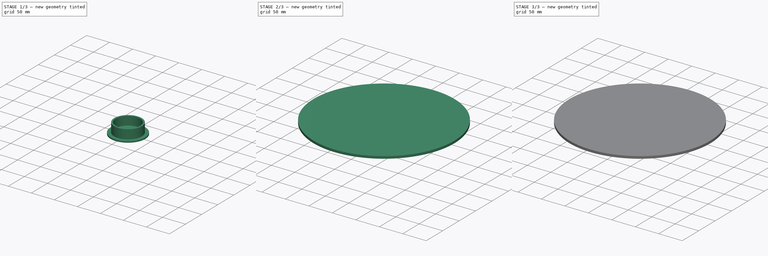
[diagram: build sequence overview — one tinted view per stage of 3, left to right]
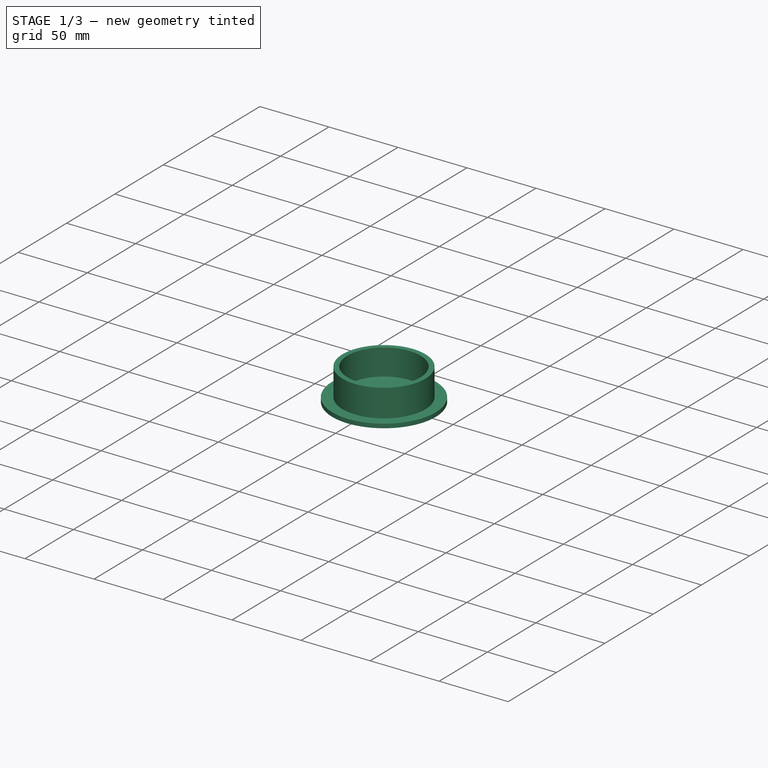
[diagram: stage 1 of 3 — iso view after this stage's code; geometry added in this stage tinted green]
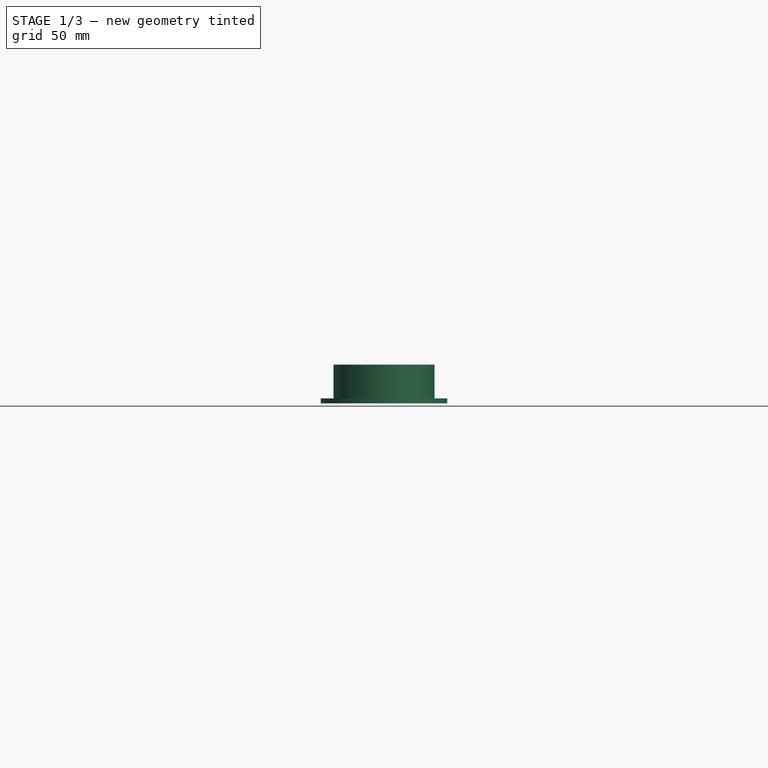
[diagram: stage 1 of 3 — front view after this stage's code; geometry added in this stage tinted green]
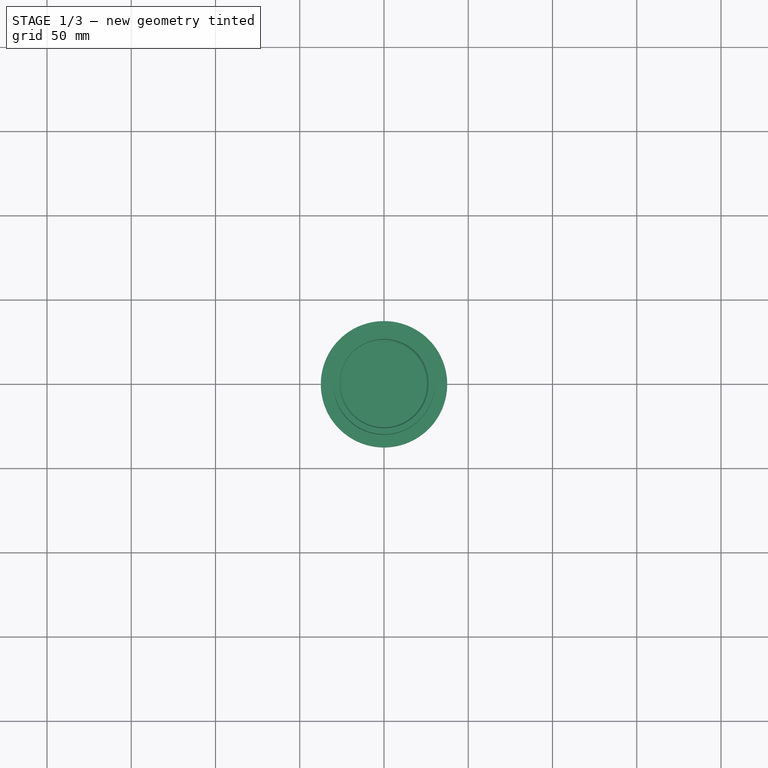
[diagram: stage 1 of 3 — top view after this stage's code; geometry added in this stage tinted green]
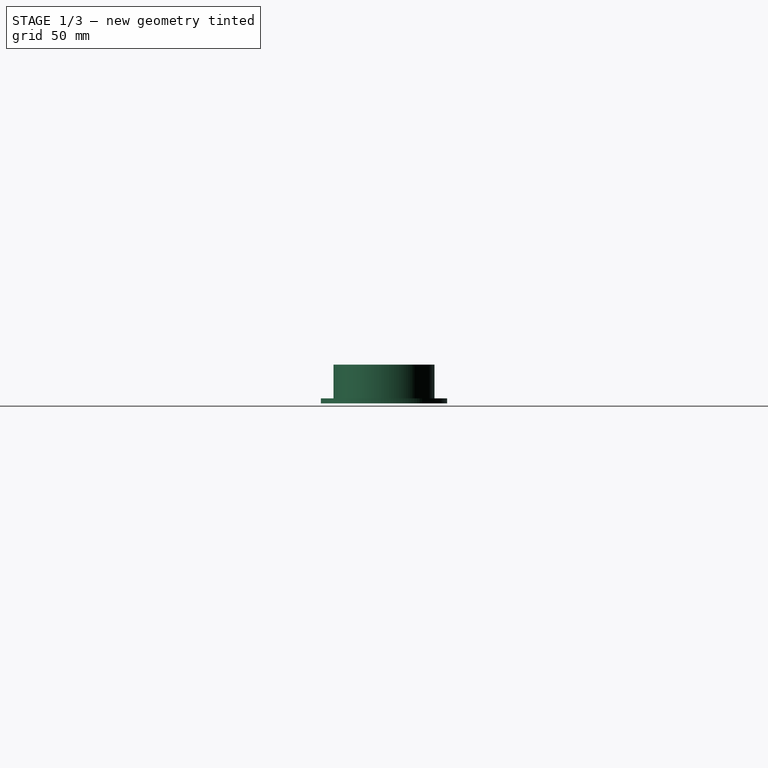
[diagram: stage 1 of 3 — right view after this stage's code; geometry added in this stage tinted green]
FCSTD DOCUMENT  (FreeCAD 1.1R44227 +647 (Git))
Label: D
License: All rights reserved
LicenseURL: https://en.wikipedia.org/wiki/All_rights_reserved
objects: Sketcher::SketchObject×7, PartDesign::Revolution×4, App::Point×3, PartDesign::Body×3, PartDesign::Chamfer×2, PartDesign::Pocket×1
note: 38 computed .brp shape members not serialized (recipe doc carries the construction recipe); baked Part::Feature solids carry a one-line shape summary decoded from their .brp

FEATURE [PartDesign::Body] Body  label="Стол"
  AllowCompound = false
  Group = -> [Sketch006,Revolution001,Sketch007,Pocket,Chamfer]
  Origin = -> Origin
  Tip = -> Chamfer
FEATURE [App::Point] Origin005  label="Начало координат004"
  Role = Origin
FEATURE [Sketcher::SketchObject] Sketch008
  ArcFitTolerance = 1e-06
  AttachmentSupport = -> [Origin004]
  ExternalTypes = [0]
  FullyConstrained = true
  MakeInternals = false
  MapMode = 5
  Placement = pos=(0,0,0) rot=(1,0,0;1.5708rad)
  _ExternalGeoVersion = 1
  sketch-geometry (8):
    g0: LineSegment StartX=0 StartY=0 StartZ=0 EndX=-26.5 EndY=0 EndZ=0
    g1: LineSegment StartX=-26.5 StartY=0 StartZ=0 EndX=-26.5 EndY=20 EndZ=0
    g2: LineSegment StartX=-26.5 StartY=20 StartZ=0 EndX=-30 EndY=20 EndZ=0
    g3: LineSegment StartX=-30 StartY=20 StartZ=0 EndX=-30 EndY=0 EndZ=0
    g4: LineSegment StartX=-30 StartY=0 StartZ=0 EndX=-37.5 EndY=0 EndZ=0
    g5: LineSegment StartX=-37.5 StartY=0 StartZ=0 EndX=-37.5 EndY=-3 EndZ=0
    g6: LineSegment StartX=-37.5 StartY=-3 StartZ=0 EndX=0 EndY=-3 EndZ=0
    g7: LineSegment StartX=0 StartY=-3 StartZ=0 EndX=0 EndY=0 EndZ=0
  constraints (23):
    c: Coincident(g-1,g0)
    c: Horizontal(g0)
    c: Coincident(g0,g1)
    c: Vertical(g1)
    c: Coincident(g1,g2)
    c: Horizontal(g2)
    c: Coincident(g2,g3)
    c: Vertical(g3)
    c: Coincident(g3,g4)
    c: Horizontal(g4)
    c: Coincident(g4,g5)
    c: Vertical(g5)
    c: Coincident(g5,g6)
    c: PointOnObject(g6,g-2)
    c: Horizontal(g6)
    c: Coincident(g6,g7)
    c: Coincident(g7,g0)
    c: DistanceY(g7,g7) = 3
    c: Horizontal(g3,g0)
    c: DistanceX(g2,g2) = 3.5
    c: DistanceX(g3,g0) = 30
    c: DistanceY(g1,g1) = 20
    c: DistanceX(g4,g4) = 7.5
FEATURE [PartDesign::Revolution] Revolution002
  Angle = 360
  Angle2 = 0
  Axis = (0,2e-16,1)
  Base = (0,0,0)
  FuseOrder = 0
  Profile = -> Sketch008
  ReferenceAxis = -> Sketch008 [V_Axis]
  Refine = true
  Suppressed = false
  Type = 0
FEATURE [PartDesign::Chamfer] Chamfer001
  Angle = 45
  Base = -> Revolution002 [Edge1]
  BaseFeature = -> Revolution002
  ChamferType = 0
  FlipDirection = false
  Refine = true
  Size = 1
  Size2 = 1
  SupportTransform = false
  Suppressed = false
  UseAllEdges = false
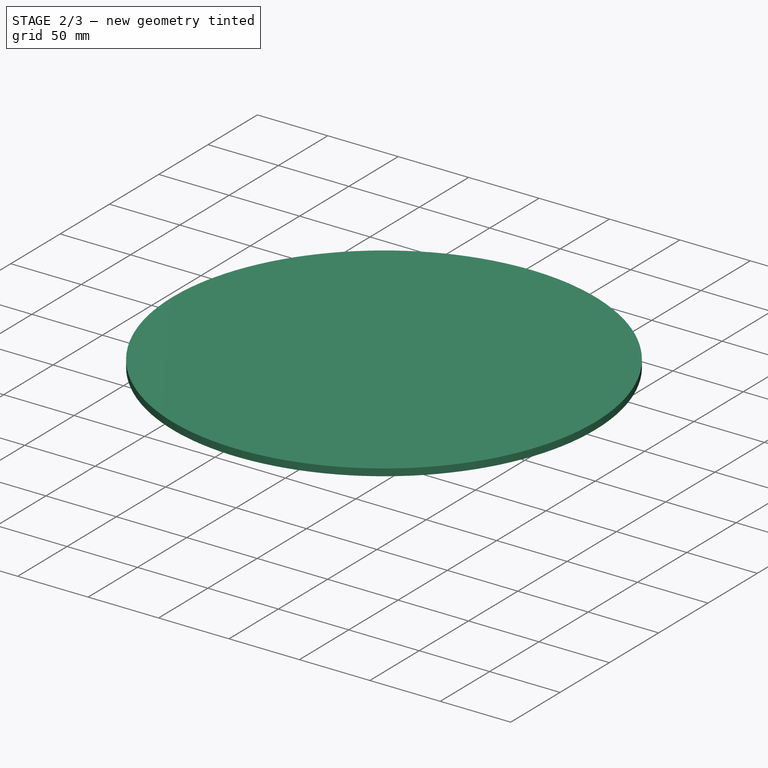
[diagram: stage 2 of 3 — iso view after this stage's code; geometry added in this stage tinted green]
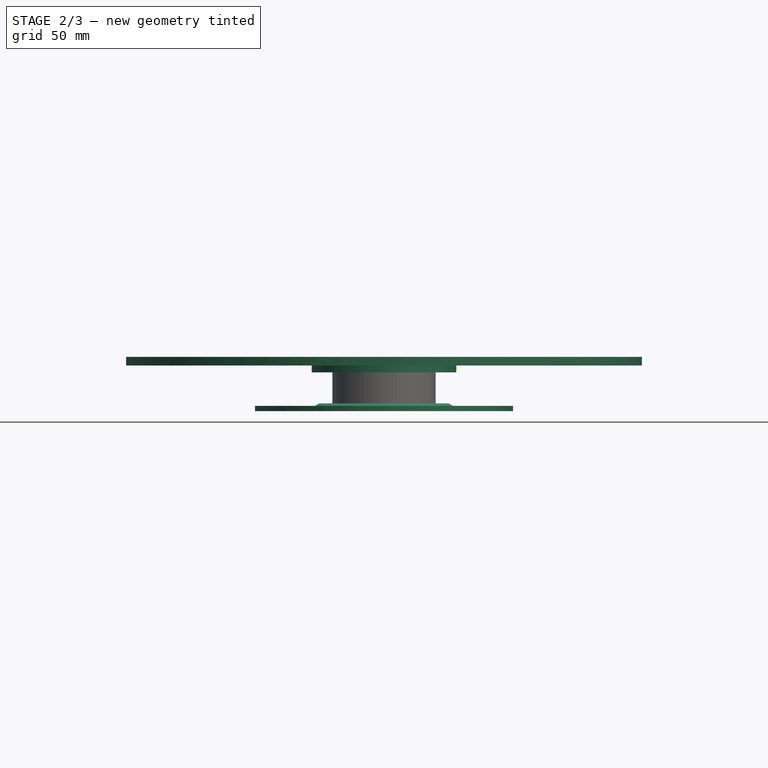
[diagram: stage 2 of 3 — front view after this stage's code; geometry added in this stage tinted green]
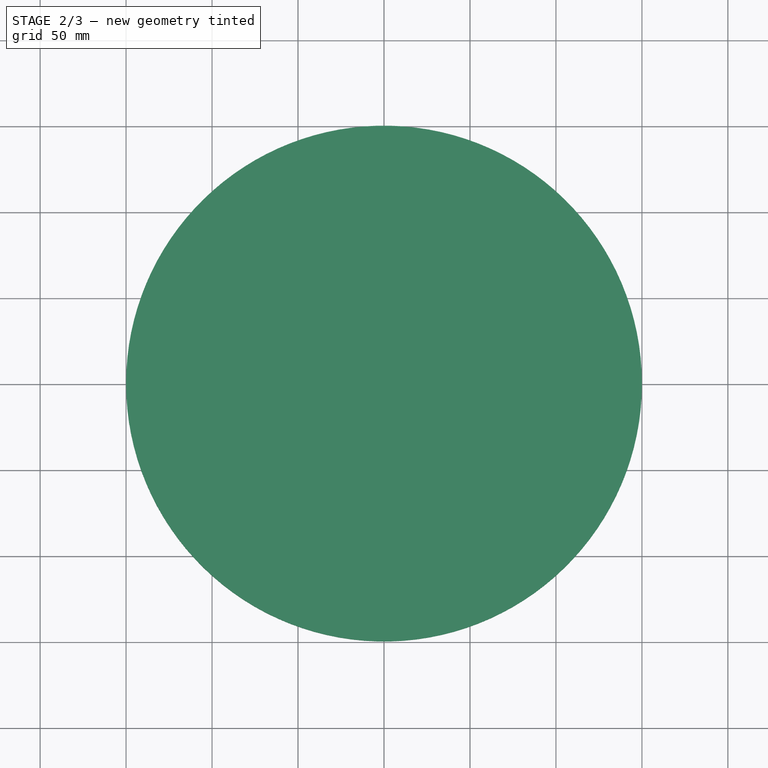
[diagram: stage 2 of 3 — top view after this stage's code; geometry added in this stage tinted green]
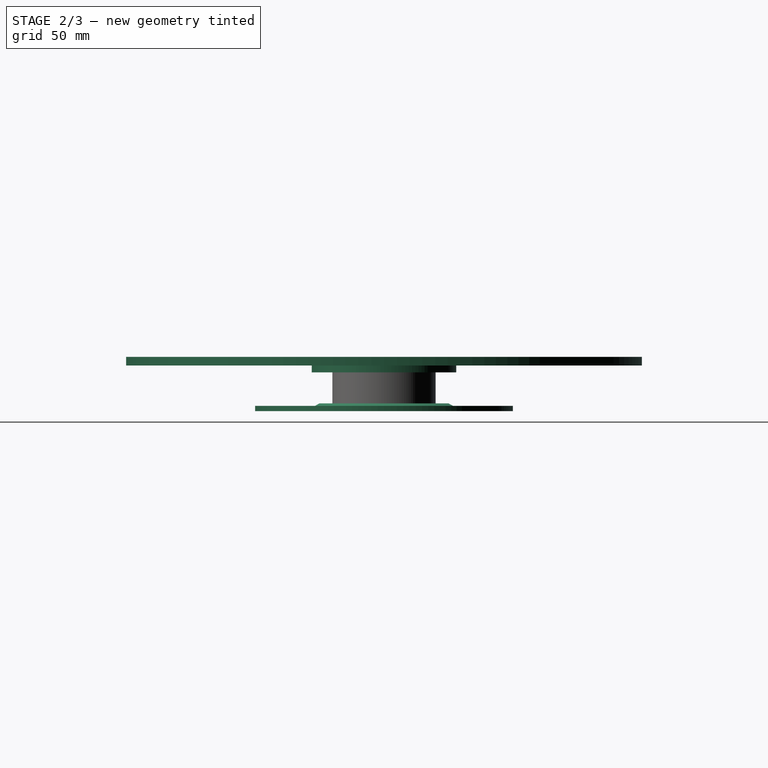
[diagram: stage 2 of 3 — right view after this stage's code; geometry added in this stage tinted green]
FEATURE [Sketcher::SketchObject] Sketch004
  ArcFitTolerance = 1e-06
  AttachmentSupport = -> [Origin002]
  ExternalTypes = [0]
  FullyConstrained = true
  MakeInternals = false
  MapMode = 5
  Placement = pos=(0,0,0) rot=(1,0,0;1.5708rad)
  _ExternalGeoVersion = 0
FEATURE [Sketcher::SketchObject] Sketch005
  ArcFitTolerance = 1e-06
  AttachmentSupport = -> [Origin002]
  ExternalTypes = [0]
  FullyConstrained = true
  MakeInternals = false
  MapMode = 5
  Placement = pos=(0,0,0) rot=(1,0,0;1.5708rad)
  _ExternalGeoVersion = 0
FEATURE [PartDesign::Body] Body001  label="Подшипник"
  AllowCompound = false
  Group = -> [Sketch,Revolution,Sketch004,Sketch005]
  Origin = -> Origin002
  Tip = -> Revolution
FEATURE [Sketcher::SketchObject] Sketch006
  ArcFitTolerance = 1e-06
  AttachmentSupport = -> [Origin]
  ExternalTypes = [0]
  FullyConstrained = true
  MakeInternals = false
  MapMode = 5
  Placement = pos=(0,0,0) rot=(1,0,0;1.5708rad)
  _ExternalGeoVersion = 0
  sketch-geometry (8):
    g0: LineSegment StartX=0 StartY=0 StartZ=0 EndX=30 EndY=0 EndZ=0
    g1: LineSegment StartX=30 StartY=0 StartZ=0 EndX=30 EndY=18 EndZ=0
    g2: LineSegment StartX=42 StartY=22 StartZ=0 EndX=150 EndY=22 EndZ=0
    g3: LineSegment StartX=150 StartY=22 StartZ=0 EndX=150 EndY=27 EndZ=0
    g4: LineSegment StartX=150 StartY=27 StartZ=0 EndX=0 EndY=27 EndZ=0
    g5: LineSegment StartX=0 StartY=27 StartZ=0 EndX=0 EndY=0 EndZ=0
    g6: LineSegment StartX=30 StartY=18 StartZ=0 EndX=42 EndY=18 EndZ=0
    g7: LineSegment StartX=42 StartY=18 StartZ=0 EndX=42 EndY=22 EndZ=0
  constraints (23):
    c: Horizontal(g0)
    c: Coincident(g0,g1)
    c: Vertical(g1)
    c: Horizontal(g2)
    c: Coincident(g2,g3)
    c: Coincident(g3,g4)
    c: Coincident(g4,g5)
    c: Coincident(g5,g0)
    c: Horizontal(g4)
    c: Vertical(g3)
    c: DistanceX(g-1,g0) = 30
    c: Vertical(g5)
    c: DistanceX(g-1,g2) = 150
    c: Distance(g1,g1) = 18
    c: DistanceY(g3,g3) = 5
    c: Coincident(g0,g-1)
    c: Coincident(g1,g6)
    c: Horizontal(g6)
    c: Coincident(g6,g7)
    c: Coincident(g7,g2)
    c: DistanceX(g6,g6) = 12
    c: DistanceY(g7,g7) = 4
    c: Vertical(g7)
FEATURE [PartDesign::Revolution] Revolution001
  Angle = 360
  Angle2 = 60
  Axis = (0,2e-16,1)
  Base = (0,0,0)
  FuseOrder = 0
  Profile = -> Sketch006
  ReferenceAxis = -> Sketch006 [V_Axis]
  Refine = true
  Reversed = true
  Suppressed = false
  Type = 0
FEATURE [Sketcher::SketchObject] Sketch007
  ArcFitTolerance = 1e-06
  AttachmentSupport = -> [Revolution001]
  ExternalGeometry = -> [Revolution001]
  ExternalTypes = [0]
  FullyConstrained = true
  MakeInternals = false
  MapMode = 5
  Placement = pos=(0,0,0) rot=(1,0,0;3.14159rad)
  _ExternalGeoVersion = 0
  sketch-geometry (1):
    g0: Circle CenterX=0 CenterY=0 CenterZ=0 NormalX=0 NormalY=0 NormalZ=1 AngleXU=0 Radius=26
  constraints (2):
    c: Coincident(g0,g-1)
    c: Diameter(g0) = 52
FEATURE [PartDesign::Pocket] Pocket
  BaseFeature = -> Revolution001
  Direction = (0,0,1)
  Length = 0
  Length2 = 5
  Profile = -> Sketch007
  ReferenceAxis = -> Sketch007 [N_Axis]
  Refine = true
  SideType = 0
  Suppressed = false
  Type = 3
  Type2 = 0
  UpToFace = -> Revolution001 [Face3]
FEATURE [Sketcher::SketchObject] Sketch009
  ArcFitTolerance = 1e-06
  AttachmentSupport = -> [Origin004]
  ExternalGeometry = -> [Chamfer001]
  ExternalTypes = [0,0,0]
  FullyConstrained = false
  MakeInternals = false
  MapMode = 5
  Placement = pos=(0,0,0) rot=(1,0,0;1.5708rad)
  _ExternalGeoVersion = 1
  sketch-geometry (7):
    g0: LineSegment StartX=-37.5 StartY=0 StartZ=0 EndX=-40.1853 EndY=-1.5 EndZ=0
    g1: LineSegment StartX=-40.1853 StartY=-1.5 StartZ=0 EndX=-75 EndY=-1.5 EndZ=0
    g2: LineSegment StartX=-75 StartY=-1.5 StartZ=0 EndX=-75 EndY=-4.5 EndZ=0
    g3: LineSegment StartX=-75 StartY=-4.5 StartZ=0 EndX=0 EndY=-4.5 EndZ=0
    g4: LineSegment StartX=0 StartY=-4.5 StartZ=0 EndX=0 EndY=-3 EndZ=0
    g5: LineSegment StartX=0 StartY=-3 StartZ=0 EndX=-37.5 EndY=-3 EndZ=0
    g6: LineSegment StartX=-37.5 StartY=-3 StartZ=0 EndX=-37.5 EndY=0 EndZ=0
  constraints (18):
    c: Coincident(g-5,g0)
    c: Coincident(g0,g1)
    c: Horizontal(g1)
    c: Coincident(g1,g2)
    c: Vertical(g2)
    c: Coincident(g2,g3)
    c: PointOnObject(g3,g-2)
    c: Horizontal(g3)
    c: DistanceX(g3,g3) = 75
    c: DistanceY(g2,g2) = 3
    c: Coincident(g3,g4)
    c: Coincident(g4,g5)
    c: Horizontal(g5)
    c: Coincident(g5,g6)
    c: Coincident(g6,g0)
    c: Coincident(g-4,g5)
    c: PointOnObject(g4,g-2)
    c: DistanceY(g0,g0) = 1.5
FEATURE [PartDesign::Revolution] Revolution003
  Angle = 360
  Angle2 = 0
  Axis = (0,2e-16,1)
  Base = (0,0,0)
  BaseFeature = -> Chamfer001
  FuseOrder = 0
  Profile = -> Sketch009
  ReferenceAxis = -> Sketch009 [V_Axis]
  Refine = true
  Suppressed = false
  Type = 0
FEATURE [PartDesign::Body] Body002  label="Подставка"
  AllowCompound = true
  Group = -> [Sketch008,Revolution002,Chamfer001,Sketch009,Revolution003]
  Origin = -> Origin004
  Tip = -> Revolution003
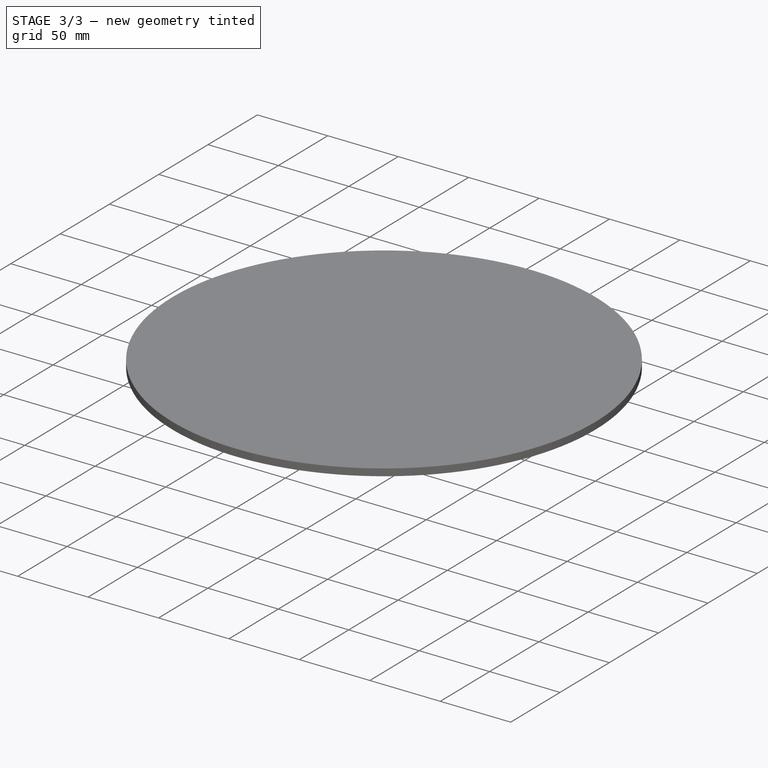
[diagram: stage 3 of 3 — iso view after this stage's code; geometry added in this stage tinted green]
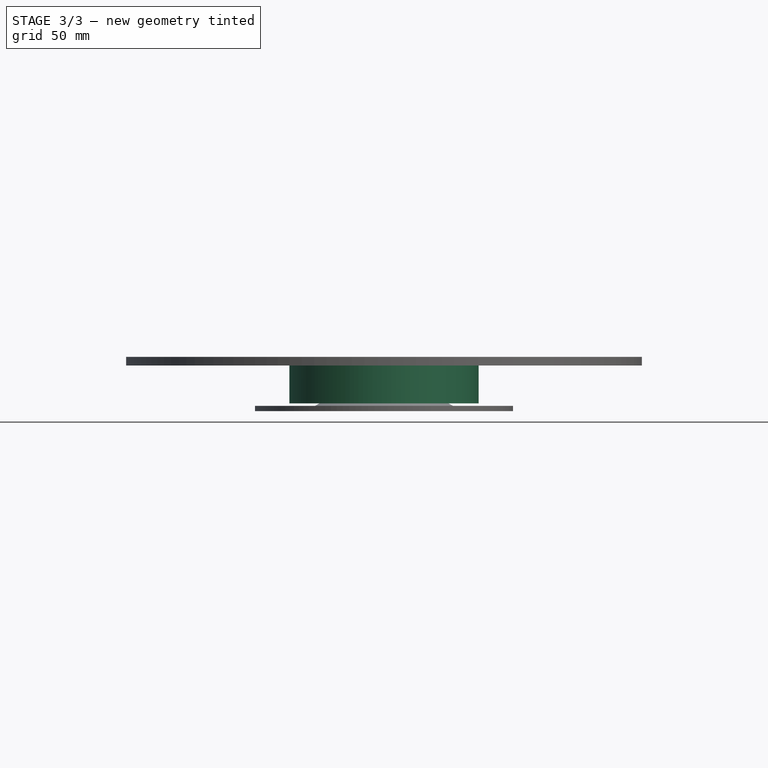
[diagram: stage 3 of 3 — front view after this stage's code; geometry added in this stage tinted green]
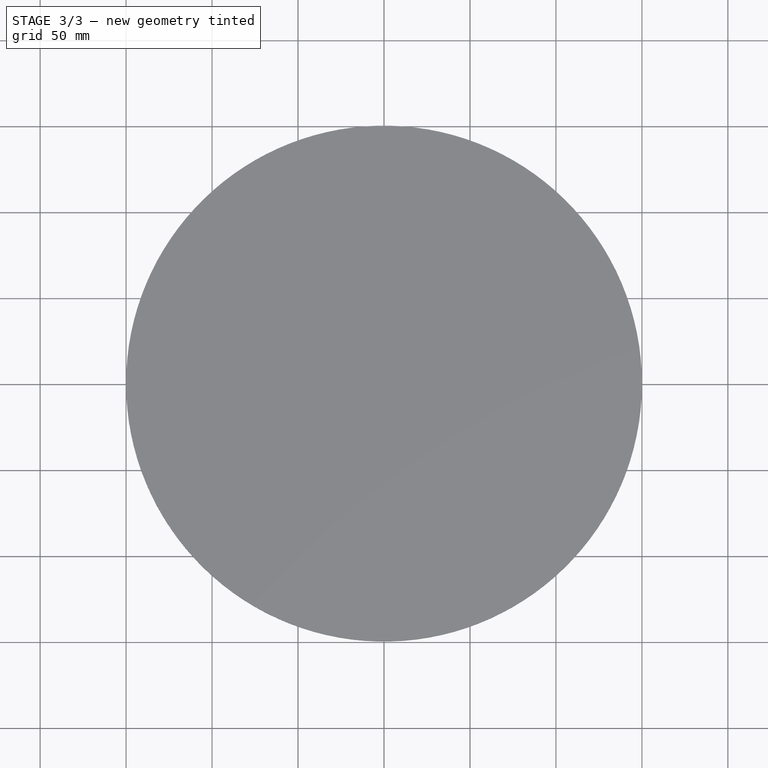
[diagram: stage 3 of 3 — top view after this stage's code; geometry added in this stage tinted green]
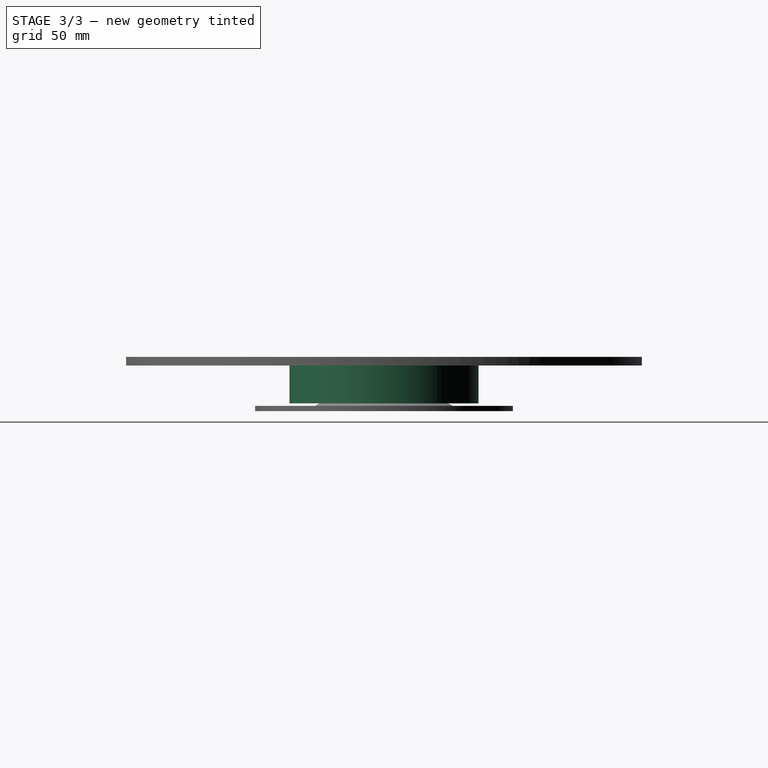
[diagram: stage 3 of 3 — right view after this stage's code; geometry added in this stage tinted green]
FEATURE [App::Point] Origin001  label="Начало координат"
  Role = Origin
FEATURE [App::Point] Origin003  label="Начало координат003"
  Role = Origin
FEATURE [Sketcher::SketchObject] Sketch
  ArcFitTolerance = 1e-06
  AttachmentSupport = -> [Origin002]
  ExternalTypes = [0]
  FullyConstrained = false
  MakeInternals = false
  MapMode = 5
  Placement = pos=(0,0,0) rot=(1,0,0;1.5708rad)
  _ExternalGeoVersion = 0
  expr: Constraints[7] = 60 / 2
  expr: Constraints[8] = 110 / 2
  sketch-geometry (13):
    g0: LineSegment StartX=30 StartY=22 StartZ=0 EndX=30 EndY=0 EndZ=0
    g1: LineSegment StartX=30 StartY=0 StartZ=0 EndX=36.7998 EndY=0 EndZ=0
    g2: LineSegment StartX=55 StartY=0 StartZ=0 EndX=55 EndY=22 EndZ=0
    g3: LineSegment StartX=55 StartY=22 StartZ=0 EndX=49.5 EndY=22 EndZ=0
    g4: LineSegment StartX=36.7998 StartY=22 StartZ=0 EndX=37.1499 EndY=21.5 EndZ=0
    g5: LineSegment StartX=37.1499 StartY=21.5 StartZ=0 EndX=49.1499 EndY=21.5 EndZ=0
    g6: LineSegment StartX=49.1499 StartY=21.5 StartZ=0 EndX=49.5 EndY=22 EndZ=0
    g7: LineSegment StartX=36.7998 StartY=0 StartZ=0 EndX=37.1499 EndY=0.5 EndZ=0
    g8: LineSegment StartX=37.1499 StartY=0.5 StartZ=0 EndX=49.1499 EndY=0.5 EndZ=0
    g9: LineSegment StartX=49.1499 StartY=0.5 StartZ=0 EndX=49.5 EndY=0 EndZ=0
    g10: LineSegment [constr] StartX=35.4638 StartY=11 StartZ=0 EndX=50.0673 EndY=11 EndZ=0
    g11: LineSegment StartX=36.7998 StartY=22 StartZ=0 EndX=30 EndY=22 EndZ=0
    g12: LineSegment StartX=49.5 StartY=0 StartZ=0 EndX=55 EndY=0 EndZ=0
  constraints (34):
    c: Coincident(g0,g1)
    c: Coincident(g12,g2)
    c: Coincident(g2,g3)
    c: Coincident(g11,g0)
    c: Vertical(g0)
    c: Vertical(g2)
    c: DistanceY(g2,g2) = 22
    c: Distance(g-1,g0) = 30
    c: DistanceX(g-1,g2) = 55
    c: PointOnObject(g0,g-1)
    c: Coincident(g4,g5)
    c: Horizontal(g5)
    c: Coincident(g5,g6)
    c: Coincident(g7,g8)
    c: Horizontal(g8)
    c: Coincident(g8,g9)
    c: Symmetric(g4,g7,g10)
    c: Symmetric(g8,g5,g10)
    c: DistanceY(g4,g4) = 0.5
    c: Equal(g4,g7)
    c: Parallel(g6,g7)
    c: Parallel(g9,g4)
    c: DistanceX(g6,g2) = 5.5
    c: DistanceX(g5,g5) = 12
    c: Equal(g9,g4)
    c: Angle(g6,g5) = 2.18166
    c: Horizontal(g3)
    c: Horizontal(g11)
    c: Coincident(g4,g11)
    c: Coincident(g6,g3)
    c: Horizontal(g1)
    c: Horizontal(g12)
    c: Coincident(g7,g1)
    c: Coincident(g9,g12)
FEATURE [PartDesign::Revolution] Revolution
  Angle = 360
  Angle2 = 60
  Axis = (0,2e-16,1)
  Base = (0,0,0)
  FuseOrder = 0
  Profile = -> Sketch
  ReferenceAxis = -> Sketch [V_Axis]
  Refine = true
  Reversed = true
  Suppressed = false
  Type = 0
FEATURE [PartDesign::Chamfer] Chamfer
  Angle = 45
  Base = -> Pocket [Edge1,Edge3]
  BaseFeature = -> Pocket
  ChamferType = 0
  FlipDirection = false
  Refine = true
  Size = 1
  Size2 = 1
  SupportTransform = false
  Suppressed = false
  UseAllEdges = false
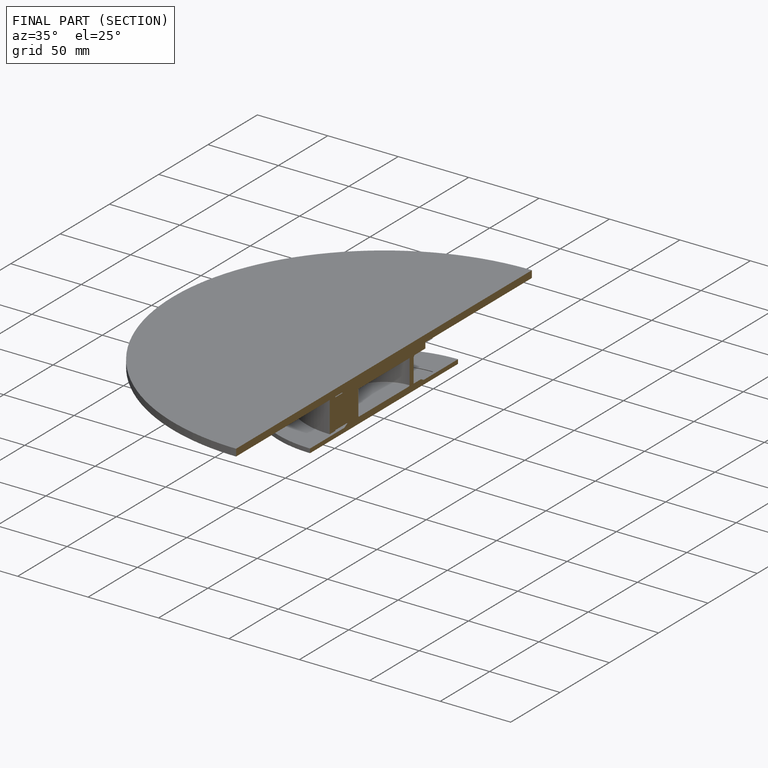
[diagram: finished part — half-section view (interior)]
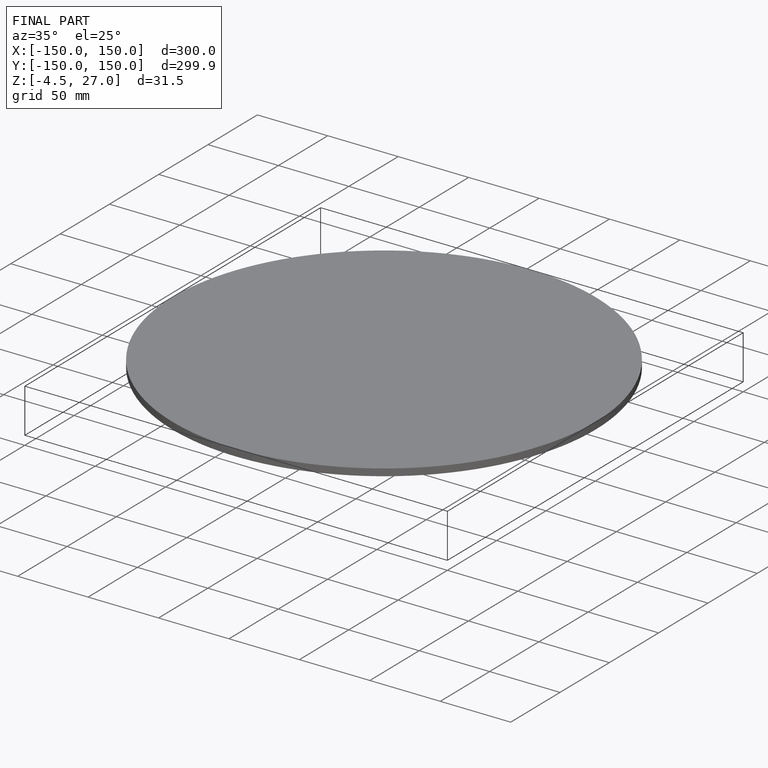
[diagram: finished part — iso view with bounding-box wireframe]
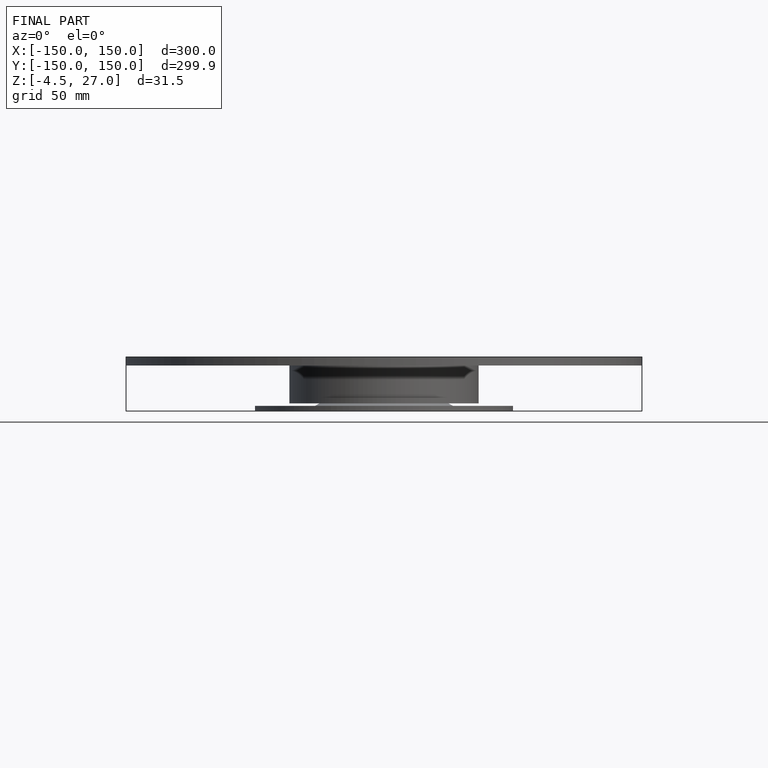
[diagram: finished part — front view with bounding-box wireframe]
